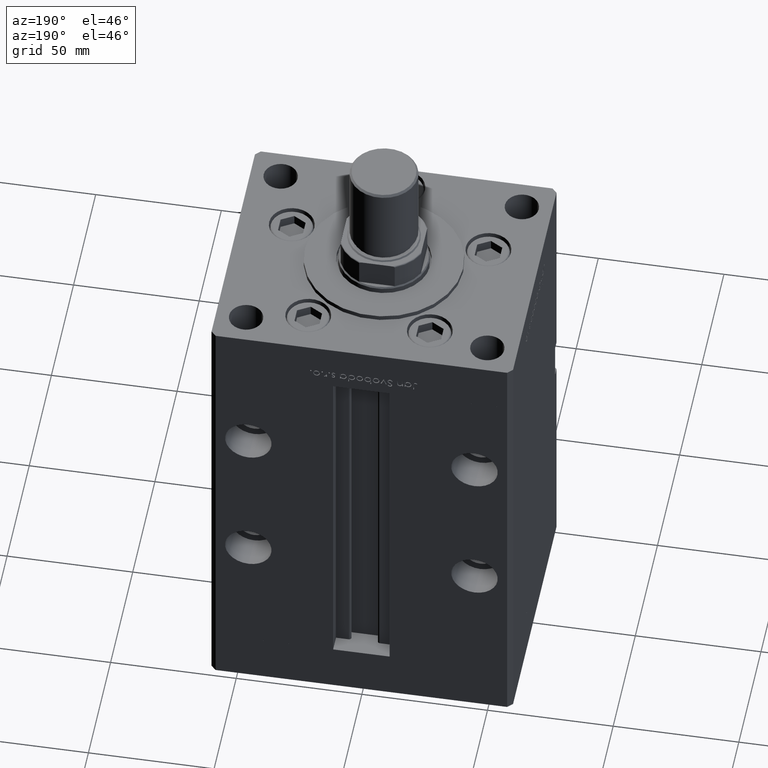
[diagram: clean part render]
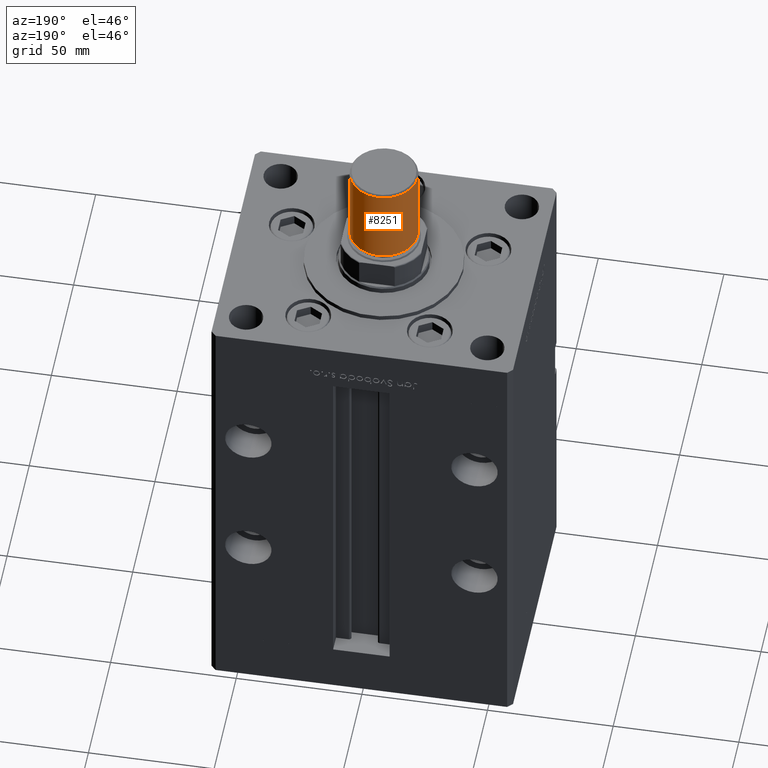
[diagram: same view with one face highlighted and labeled with its STEP entity id]
A machine part, auxiliary view. The second image highlights one B-rep face of the part: STEP entity #8251.
In plain terms, the highlighted cylindrical surface (edge-blend (fillet) strip) has radius 13.5 mm, axis along (0, -0, 1).
Its self-contained STEP definition (entity closure, byte-faithful):
#1658 = EDGE_CURVE ( 'NONE', #24674, #35278, #42946, .T. ) ;
#1880 = DIRECTION ( 'NONE',  ( 0.000000000000000000, 0.000000000000000000, 1.000000000000000000 ) ) ;
#2412 = CARTESIAN_POINT ( 'NONE',  ( 0.000000000000000000, 0.000000000000000000, 33.50000000000000000 ) ) ;
#2957 = LINE ( 'NONE', #39466, #6594 ) ;
#3589 = VERTEX_POINT ( 'NONE', #53247 ) ;
#4295 = AXIS2_PLACEMENT_3D ( 'NONE', #2412, #1880, #22701 ) ;
#6594 = VECTOR ( 'NONE', #11071, 1000.000000000000000 ) ;
#7598 = ORIENTED_EDGE ( 'NONE', *, *, #1658, .T. ) ;
#8251 = ADVANCED_FACE ( 'NONE', ( #27669 ), #35773, .T. ) ;
#11057 = AXIS2_PLACEMENT_3D ( 'NONE', #36032, #39822, #47383 ) ;
#11071 = DIRECTION ( 'NONE',  ( -0.000000000000000000, -0.000000000000000000, -1.000000000000000000 ) ) ;
#13427 = DIRECTION ( 'NONE',  ( -0.000000000000000000, -0.000000000000000000, -1.000000000000000000 ) ) ;
#13569 = EDGE_CURVE ( 'NONE', #3589, #49548, #33691, .T. ) ;
#22701 = DIRECTION ( 'NONE',  ( 1.000000000000000000, 0.000000000000000000, 0.000000000000000000 ) ) ;
#24049 = CARTESIAN_POINT ( 'NONE',  ( -13.50000000000000000, 0.000000000000000000, 0.7999999999999951594 ) ) ;
#24674 = VERTEX_POINT ( 'NONE', #45118 ) ;
#27669 = FACE_OUTER_BOUND ( 'NONE', #29289, .T. ) ;
#28626 = CARTESIAN_POINT ( 'NONE',  ( -13.50000000000000000, 0.000000000000000000, 33.50000000000000000 ) ) ;
#29289 = EDGE_LOOP ( 'NONE', ( #47887, #44029, #7598, #50076 ) ) ;
#30195 = LINE ( 'NONE', #38557, #52298 ) ;
#31564 = DIRECTION ( 'NONE',  ( -0.000000000000000000, -0.000000000000000000, 1.000000000000000000 ) ) ;
#32645 = EDGE_CURVE ( 'NONE', #3589, #24674, #30195, .T. ) ;
#33691 = CIRCLE ( 'NONE', #4295, 13.50000000000000000 ) ;
#35187 = EDGE_CURVE ( 'NONE', #49548, #35278, #2957, .T. ) ;
#35278 = VERTEX_POINT ( 'NONE', #24049 ) ;
#35773 = CYLINDRICAL_SURFACE ( 'NONE', #11057, 13.50000000000000000 ) ;
#36032 = CARTESIAN_POINT ( 'NONE',  ( 0.000000000000000000, 0.000000000000000000, 33.50000000000000000 ) ) ;
#38557 = CARTESIAN_POINT ( 'NONE',  ( 13.50000000000000000, 1.653273178848926867E-15, 33.50000000000000000 ) ) ;
#38625 = AXIS2_PLACEMENT_3D ( 'NONE', #48314, #31564, #39943 ) ;
#39466 = CARTESIAN_POINT ( 'NONE',  ( -13.50000000000000000, 0.000000000000000000, 33.50000000000000000 ) ) ;
#39822 = DIRECTION ( 'NONE',  ( -0.000000000000000000, -0.000000000000000000, -1.000000000000000000 ) ) ;
#39943 = DIRECTION ( 'NONE',  ( 1.000000000000000000, 0.000000000000000000, 0.000000000000000000 ) ) ;
#42946 = CIRCLE ( 'NONE', #38625, 13.50000000000000000 ) ;
#44029 = ORIENTED_EDGE ( 'NONE', *, *, #32645, .T. ) ;
#45118 = CARTESIAN_POINT ( 'NONE',  ( 13.50000000000000000, 1.653273178848926867E-15, 0.7999999999999951594 ) ) ;
#47383 = DIRECTION ( 'NONE',  ( -1.000000000000000000, 0.000000000000000000, 0.000000000000000000 ) ) ;
#47887 = ORIENTED_EDGE ( 'NONE', *, *, #13569, .F. ) ;
#48314 = CARTESIAN_POINT ( 'NONE',  ( 0.000000000000000000, 0.000000000000000000, 0.7999999999999951594 ) ) ;
#49548 = VERTEX_POINT ( 'NONE', #28626 ) ;
#50076 = ORIENTED_EDGE ( 'NONE', *, *, #35187, .F. ) ;
#52298 = VECTOR ( 'NONE', #13427, 1000.000000000000000 ) ;
#53247 = CARTESIAN_POINT ( 'NONE',  ( 13.50000000000000000, 1.653273178848926867E-15, 33.50000000000000000 ) ) ;